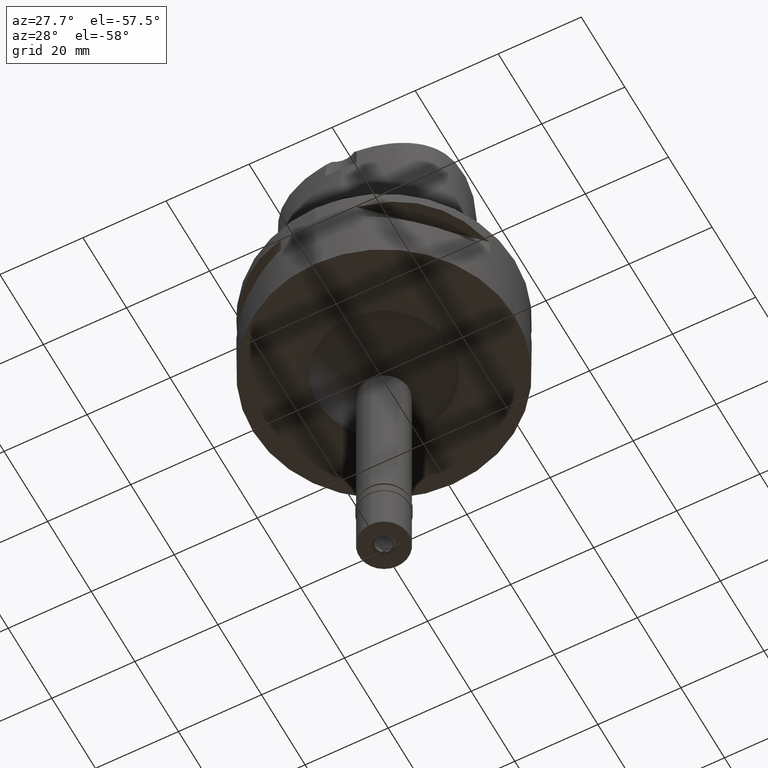
[diagram: clean part render]
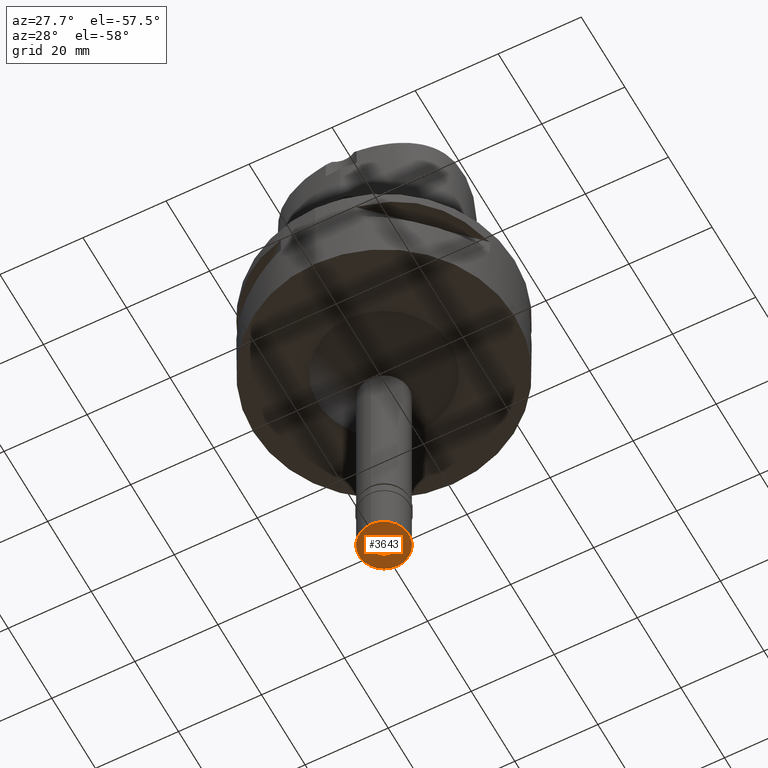
[diagram: same view with one face highlighted and labeled with its STEP entity id]
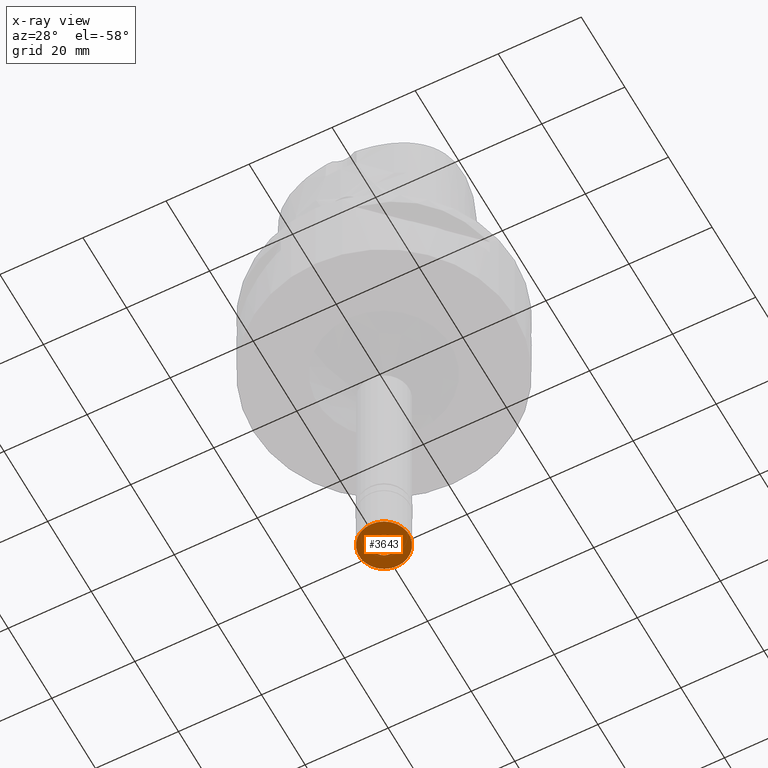
[diagram: x-ray of the same camera — body ghosted, the highlighted face saturated]
A machine part, auxiliary view. The second image highlights one B-rep face of the part: STEP entity #3643.
The next image is the same camera in x-ray: the body ghosted, the highlighted face saturated — about 0% of this face is hidden behind the body in this view.
In plain terms, the highlighted planar face has unit normal (0, 0, 1).
Its self-contained STEP definition (entity closure, byte-faithful):
#136 = EDGE_CURVE ( 'NONE', #1547, #2027, #3870, .T. ) ;
#195 = FACE_OUTER_BOUND ( 'NONE', #3691, .T. ) ;
#487 = DIRECTION ( 'NONE',  ( 0.0000000000000000000, 0.0000000000000000000, 1.000000000000000000 ) ) ;
#554 = CIRCLE ( 'NONE', #790, 2.550000000000000266 ) ;
#648 = DIRECTION ( 'NONE',  ( 0.0000000000000000000, 0.0000000000000000000, 1.000000000000000000 ) ) ;
#790 = AXIS2_PLACEMENT_3D ( 'NONE', #1709, #3953, #1636 ) ;
#947 = AXIS2_PLACEMENT_3D ( 'NONE', #4768, #648, #3223 ) ;
#1106 = AXIS2_PLACEMENT_3D ( 'NONE', #2410, #487, #1248 ) ;
#1238 = CARTESIAN_POINT ( 'NONE',  ( 0.0000000000000000000, 0.0000000000000000000, -14.50000000000000000 ) ) ;
#1248 = DIRECTION ( 'NONE',  ( 0.0000000000000000000, 1.000000000000000000, 0.0000000000000000000 ) ) ;
#1547 = VERTEX_POINT ( 'NONE', #2365 ) ;
#1554 = DIRECTION ( 'NONE',  ( 0.0000000000000000000, 0.0000000000000000000, -1.000000000000000000 ) ) ;
#1608 = DIRECTION ( 'NONE',  ( 0.0000000000000000000, -1.000000000000000000, 0.0000000000000000000 ) ) ;
#1636 = DIRECTION ( 'NONE',  ( 0.0000000000000000000, 1.000000000000000000, 0.0000000000000000000 ) ) ;
#1704 = FACE_BOUND ( 'NONE', #4888, .T. ) ;
#1709 = CARTESIAN_POINT ( 'NONE',  ( 0.0000000000000000000, 0.0000000000000000000, -14.50000000000000000 ) ) ;
#1819 = CIRCLE ( 'NONE', #3246, 2.550000000000000266 ) ;
#1857 = CARTESIAN_POINT ( 'NONE',  ( 0.0000000000000000000, 0.0000000000000000000, -14.50000000000000000 ) ) ;
#2027 = VERTEX_POINT ( 'NONE', #3382 ) ;
#2099 = PLANE ( 'NONE',  #947 ) ;
#2226 = VERTEX_POINT ( 'NONE', #4133 ) ;
#2365 = CARTESIAN_POINT ( 'NONE',  ( 0.0000000000000000000, 6.000000000000000000, -14.50000000000000000 ) ) ;
#2410 = CARTESIAN_POINT ( 'NONE',  ( 0.0000000000000000000, 0.0000000000000000000, -14.50000000000000000 ) ) ;
#2430 = VERTEX_POINT ( 'NONE', #3251 ) ;
#2617 = ORIENTED_EDGE ( 'NONE', *, *, #3807, .F. ) ;
#2763 = ORIENTED_EDGE ( 'NONE', *, *, #3534, .F. ) ;
#3124 = ORIENTED_EDGE ( 'NONE', *, *, #136, .F. ) ;
#3223 = DIRECTION ( 'NONE',  ( 1.000000000000000000, 0.0000000000000000000, 0.0000000000000000000 ) ) ;
#3246 = AXIS2_PLACEMENT_3D ( 'NONE', #1857, #1554, #4191 ) ;
#3251 = CARTESIAN_POINT ( 'NONE',  ( 0.0000000000000000000, 2.550000000000000266, -14.50000000000000000 ) ) ;
#3382 = CARTESIAN_POINT ( 'NONE',  ( 0.0000000000000000000, -6.000000000000000000, -14.50000000000000000 ) ) ;
#3503 = DIRECTION ( 'NONE',  ( 0.0000000000000000000, 0.0000000000000000000, 1.000000000000000000 ) ) ;
#3534 = EDGE_CURVE ( 'NONE', #2027, #1547, #4906, .T. ) ;
#3643 = ADVANCED_FACE ( 'NONE', ( #195, #1704 ), #2099, .F. ) ;
#3691 = EDGE_LOOP ( 'NONE', ( #3124, #2763 ) ) ;
#3730 = EDGE_CURVE ( 'NONE', #2430, #2226, #554, .T. ) ;
#3807 = EDGE_CURVE ( 'NONE', #2226, #2430, #1819, .T. ) ;
#3870 = CIRCLE ( 'NONE', #1106, 6.000000000000000000 ) ;
#3953 = DIRECTION ( 'NONE',  ( 0.0000000000000000000, 0.0000000000000000000, -1.000000000000000000 ) ) ;
#4133 = CARTESIAN_POINT ( 'NONE',  ( 0.0000000000000000000, -2.550000000000000266, -14.50000000000000000 ) ) ;
#4191 = DIRECTION ( 'NONE',  ( 0.0000000000000000000, -1.000000000000000000, 0.0000000000000000000 ) ) ;
#4517 = AXIS2_PLACEMENT_3D ( 'NONE', #1238, #3503, #1608 ) ;
#4726 = ORIENTED_EDGE ( 'NONE', *, *, #3730, .F. ) ;
#4768 = CARTESIAN_POINT ( 'NONE',  ( 0.0000000000000000000, 0.0000000000000000000, -14.50000000000000000 ) ) ;
#4888 = EDGE_LOOP ( 'NONE', ( #4726, #2617 ) ) ;
#4906 = CIRCLE ( 'NONE', #4517, 6.000000000000000000 ) ;